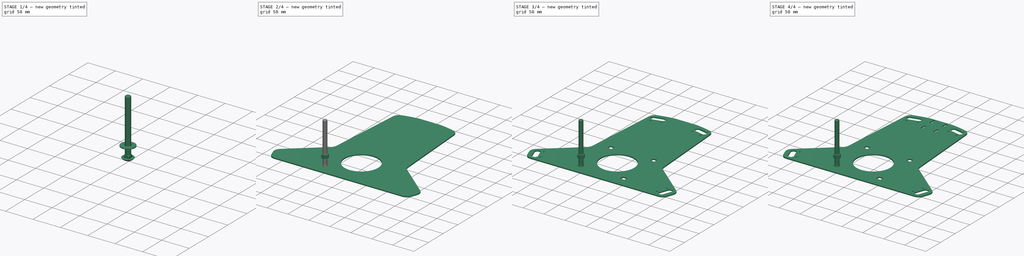
[diagram: build sequence overview — one tinted view per stage of 4, left to right]
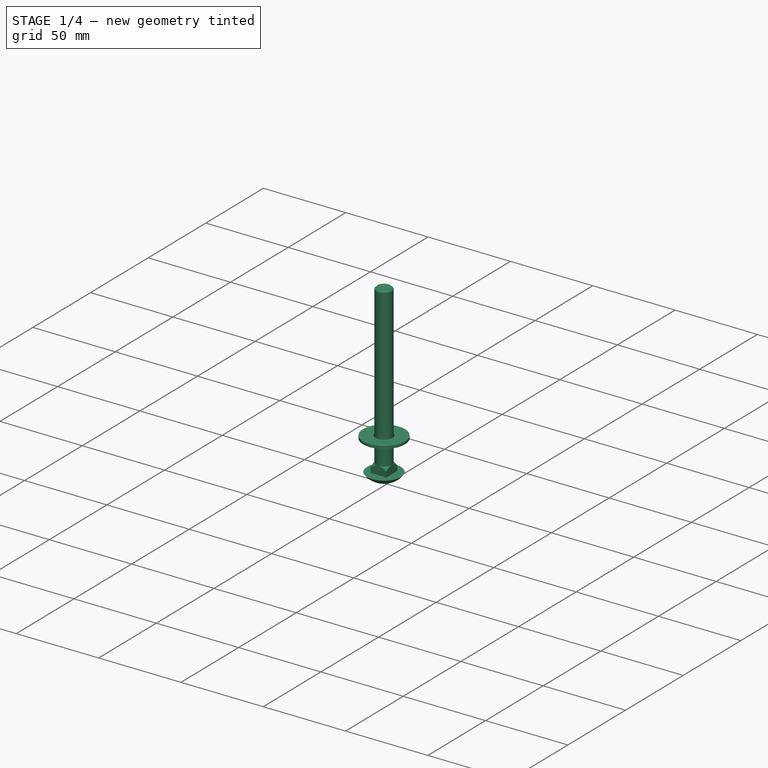
[diagram: stage 1 of 4 — iso view after this stage's code; geometry added in this stage tinted green]
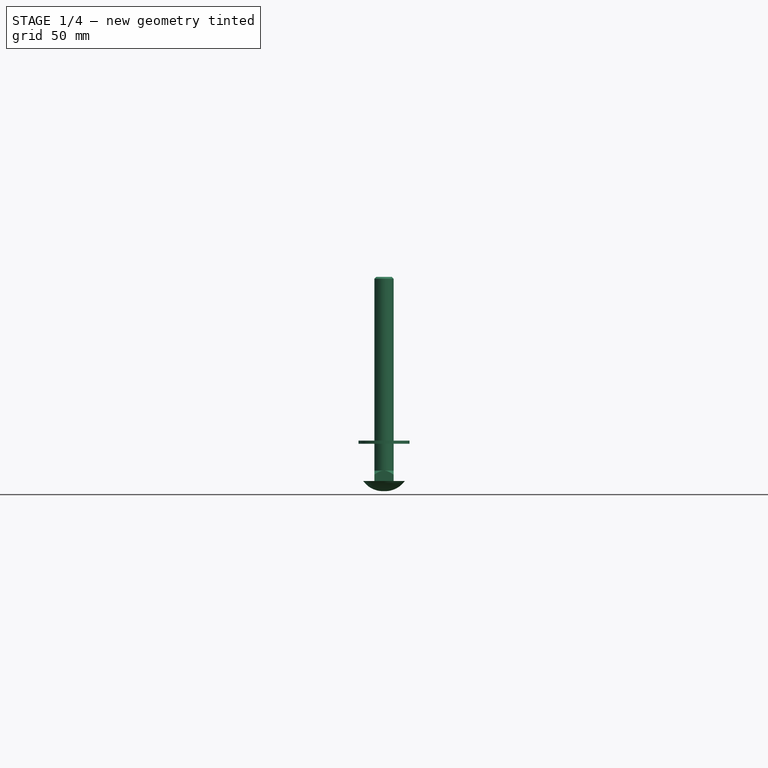
[diagram: stage 1 of 4 — front view after this stage's code; geometry added in this stage tinted green]
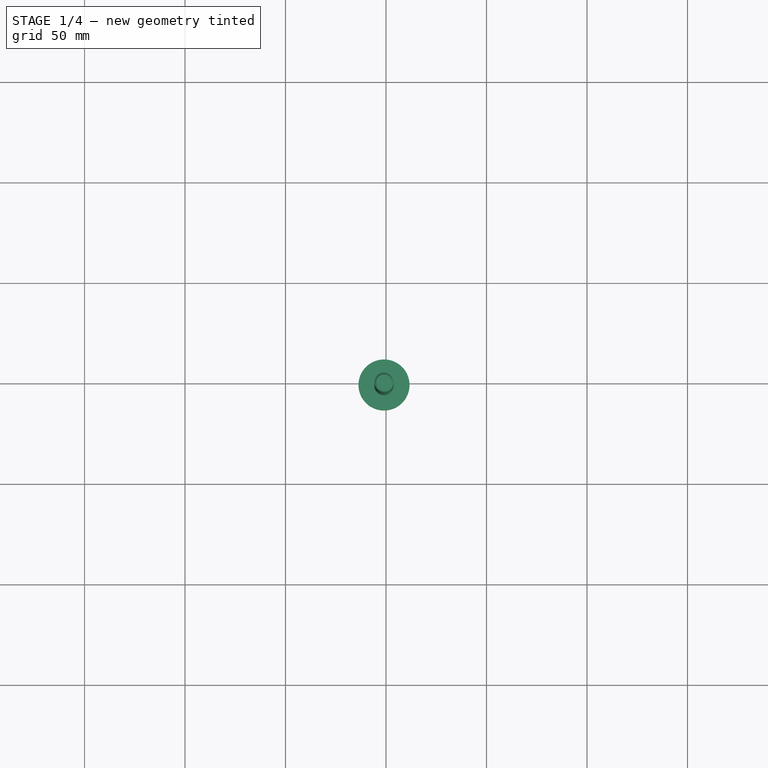
[diagram: stage 1 of 4 — top view after this stage's code; geometry added in this stage tinted green]
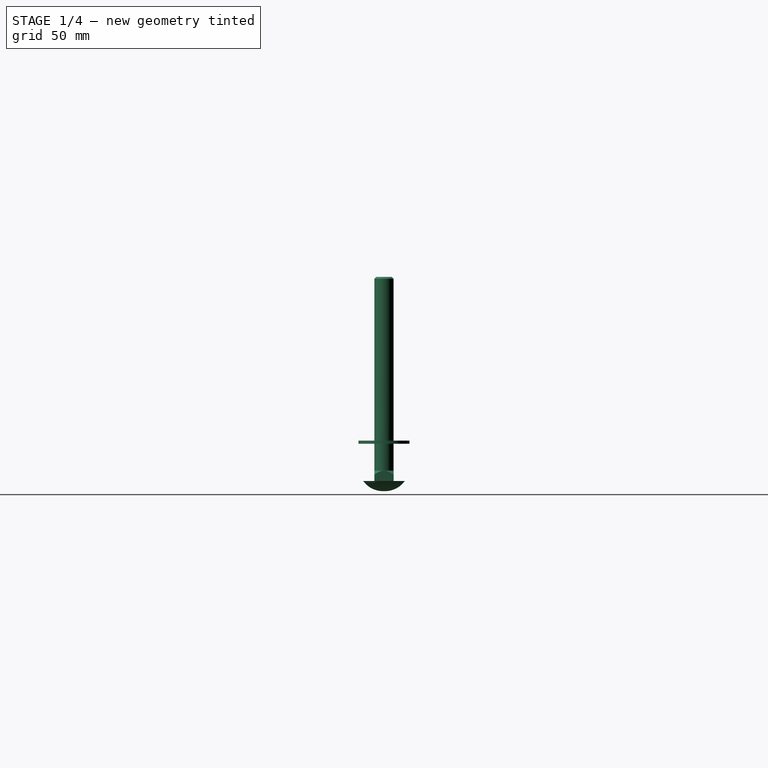
[diagram: stage 1 of 4 — right view after this stage's code; geometry added in this stage tinted green]
FCSTD DOCUMENT  (FreeCAD 0.20R29177 +426 (Git))
Label: DrivePlatform
License: All rights reserved
LicenseURL: http://en.wikipedia.org/wiki/All_rights_reserved
objects: PartDesign::CoordinateSystem×9, Part::FeaturePython×6, Sketcher::SketchObject×5, App::DocumentObjectGroup×4, PartDesign::Pocket×3, PartDesign::Mirrored×2, App::FeaturePython×1, PartDesign::Pad×1, PartDesign::Hole×1, PartDesign::Body×1, TechDraw::DrawSVGTemplate×1, TechDraw::DrawViewPart×1, TechDraw::DrawPage×1, App::Part×1
note: 33 computed .brp shape members not serialized (recipe doc carries the construction recipe); baked Part::Feature solids carry a one-line shape summary decoded from their .brp
EXTERNAL_REF file=Params.FCStd obj=Spreadsheet
EXTERNAL_REF file=TableRollerBase.FCStd obj=Sketch001
EXTERNAL_REF file=PillowBlock.FCStd obj=Sketch001
EXTERNAL_REF file=PillowBlock.FCStd obj=Pad
EXTERNAL_REF file=Stepper17BracketFlat.FCStd obj=Sketch

FEATURE [Part::FeaturePython] Screw002  label="3/8inx4in-Screw"  # Fasteners workbench fastener (typed FeaturePython)
  Placement = pos=(-51.005,-51.005,0) rot=(1,0,0;3.14159rad)
  baseObject = -> Sketch [Edge4]
  diameter = 4
  invert = true
  leftHanded = false
  length = 16
  lengthCustom = 101.6
  matchOuter = false
  offset = 0
  thread = false
  type = 11
FEATURE [Part::FeaturePython] Washer  label="3/8in-Washer"  # Fasteners workbench fastener (typed FeaturePython)
  Placement = pos=(-51.005,-51.005,18.531) rot=(0,0,1;0rad)
  diameter = 13
  invert = true
  matchOuter = false
  offset = 18.531
  type = 1
  expr: offset = <<Params>>#<<Params>>.SheetMetalThickness * 1mm + <<PillowBlock>>#<<Pad>>.Length
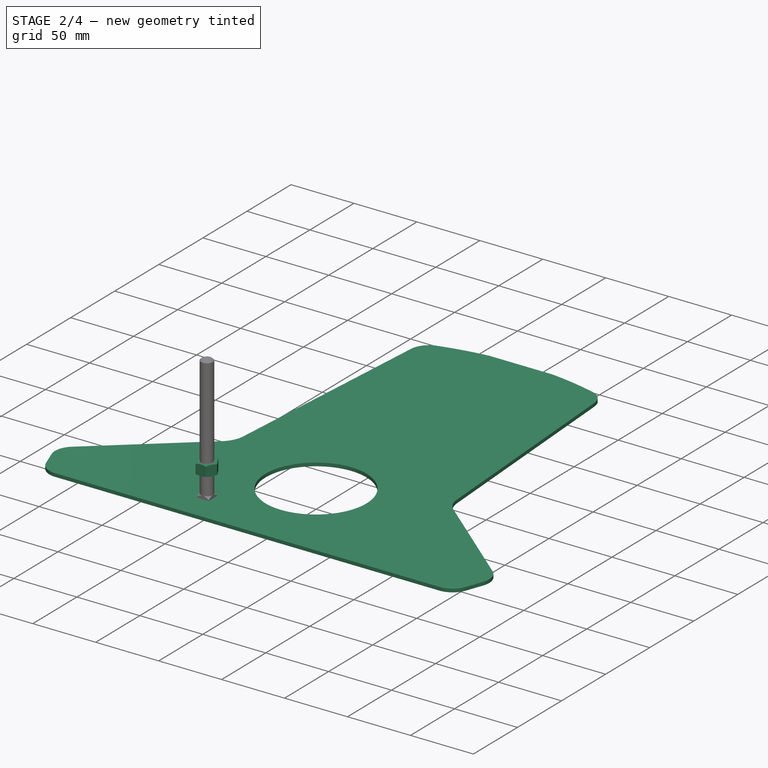
[diagram: stage 2 of 4 — iso view after this stage's code; geometry added in this stage tinted green]
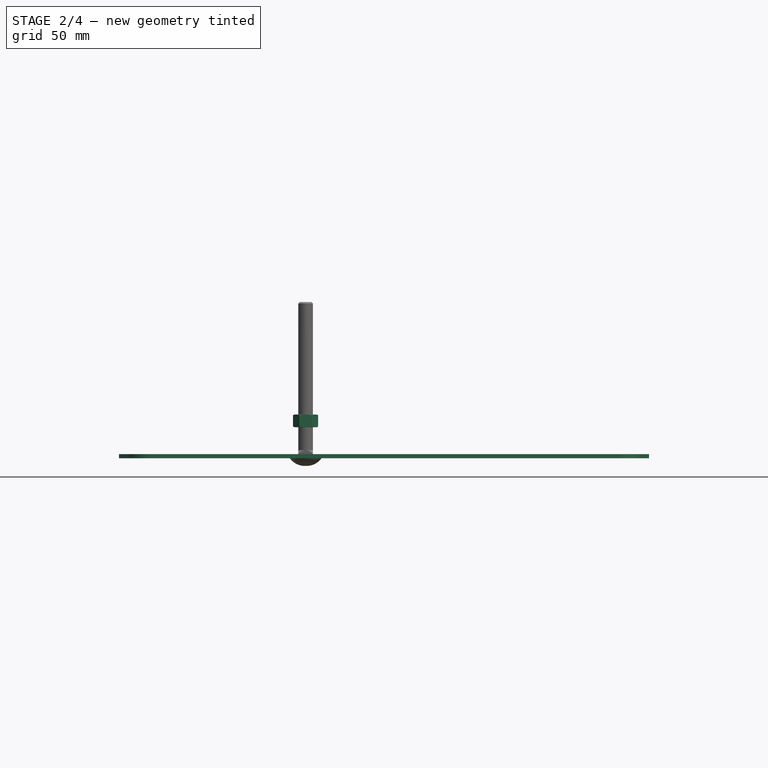
[diagram: stage 2 of 4 — front view after this stage's code; geometry added in this stage tinted green]
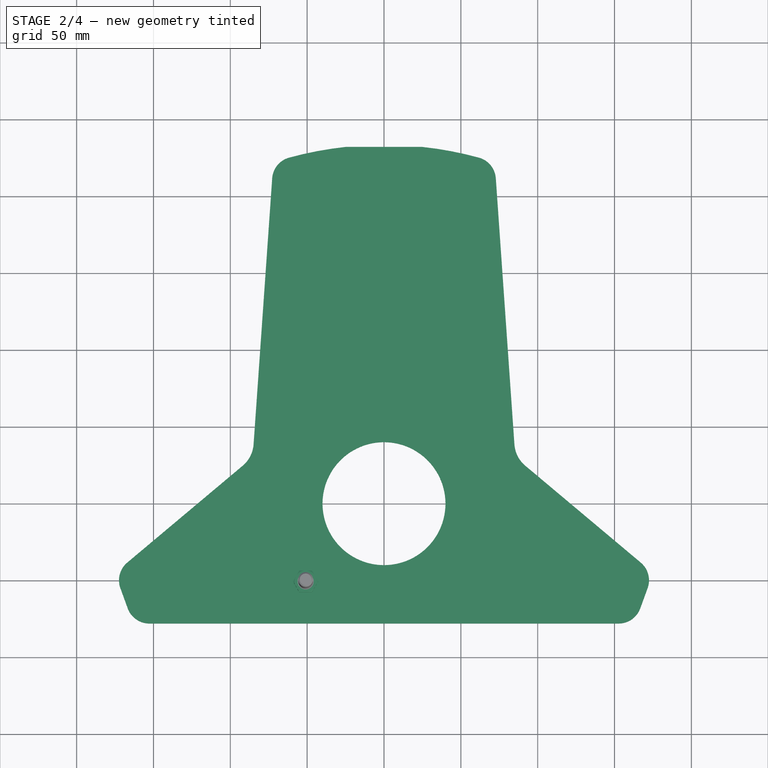
[diagram: stage 2 of 4 — top view after this stage's code; geometry added in this stage tinted green]
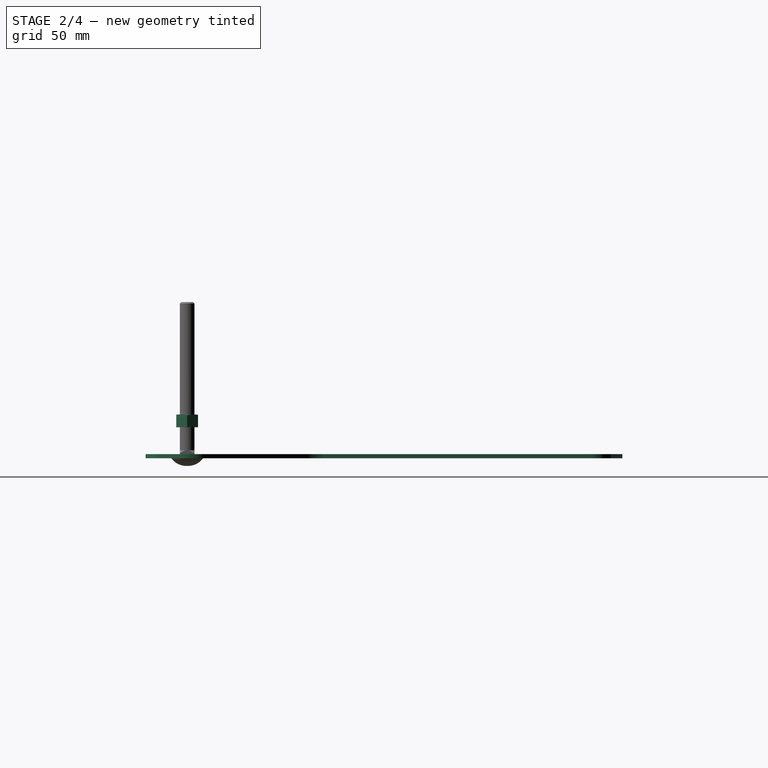
[diagram: stage 2 of 4 — right view after this stage's code; geometry added in this stage tinted green]
FEATURE [App::DocumentObjectGroup] Parts
FEATURE [PartDesign::CoordinateSystem] LCS_Origin
  AttacherType = Attacher::AttachEngine3D
  MapMode = 2
  Support = -> [X_Axis]
FEATURE [App::FeaturePython] Variables  # WARN: FeaturePython — macro-defined, semantics opaque (R4)
  RibOffset = 70
  Type = App::PropertyContainer
FEATURE [App::DocumentObjectGroup] Constraints
FEATURE [App::DocumentObjectGroup] Configurations
FEATURE [Sketcher::SketchObject] Sketch_1
  FullyConstrained = true
  MapMode = 2
  Support = -> [XY_Plane001]
  expr: Constraints[11] = <<Params>>#<<Params>>.CeilingPlateDiameter + 4
  expr: Constraints[19] = <<Params>>#<<Params>>.TableRollerSideRadius + 16
  expr: Constraints[42] = <<Params>>#<<Params>>.TableRollerSideAngle
  expr: Constraints[53] = <<TableRollerBase>>#<<Sketch001>>.Constraints.BaseWidth
  expr: Constraints[66] = <<Params>>#<<Params>>.TableRollerDriveSupportAngle
  sketch-geometry (27):
    g0: LineSegment StartX=152.655 StartY=-78.0112 StartZ=0 EndX=0 EndY=-78.0112 EndZ=0
    g1: ArcOfCircle CenterX=0 CenterY=0 CenterZ=0 NormalX=0 NormalY=0 NormalZ=1 AngleXU=0 Radius=40 StartAngle=4.71239 EndAngle=7.85398
    g2: LineSegment StartX=0 StartY=0 StartZ=0 EndX=-7.3e-15 EndY=-40 EndZ=0
    g3: LineSegment StartX=-7.3e-15 StartY=-40 StartZ=0 EndX=0 EndY=-78.0112 EndZ=0
    g4: Circle CenterX=0 CenterY=0 CenterZ=0 NormalX=0 NormalY=0 NormalZ=1 AngleXU=0 Radius=233.5
    g5: ArcOfCircle CenterX=57.7882 CenterY=210.72 CenterZ=0 NormalX=0 NormalY=0 NormalZ=1 AngleXU=0 Radius=15 StartAngle=0.0698419 EndAngle=1.30313
    g6: ArcOfCircle CenterX=0 CenterY=0 CenterZ=0 NormalX=0 NormalY=0 NormalZ=1 AngleXU=0 Radius=233.5 StartAngle=1.30313 EndAngle=1.46352
    g7: LineSegment StartX=1.22e-14 StartY=40 StartZ=0 EndX=1.22e-14 EndY=232.158 EndZ=0
    g8: LineSegment StartX=0 StartY=0 StartZ=0 EndX=169.145 EndY=-61.5636 EndZ=0
    g9: LineSegment StartX=166.751 StartY=-68.1415 StartZ=0 EndX=171.539 EndY=-54.9858 EndZ=0
    g10: LineSegment StartX=91.9613 StartY=24.6716 StartZ=0 EndX=167.085 EndY=-38.3648 EndZ=0
    g11: ArcOfCircle CenterX=152.655 CenterY=-63.0112 CenterZ=0 NormalX=0 NormalY=0 NormalZ=1 AngleXU=0 Radius=15 StartAngle=4.71239 EndAngle=5.93412
    g12: GeomPoint X=163.158 Y=-78.0112 Z=0
    g13: ArcOfCircle CenterX=157.443 CenterY=-49.8555 CenterZ=0 NormalX=0 NormalY=0 NormalZ=1 AngleXU=0 Radius=15 StartAngle=5.93412 EndAngle=7.15585
    g14: GeomPoint X=175.131 Y=-45.1161 Z=0
    g15: ArcOfCircle CenterX=104.817 CenterY=39.9925 CenterZ=0 NormalX=0 NormalY=0 NormalZ=1 AngleXU=0 Radius=20 StartAngle=3.21143 EndAngle=4.01426
    g16: LineSegment StartX=65.7785 StartY=-23.9414 StartZ=0 EndX=46.0987 EndY=-78.0112 EndZ=0
    g17: LineSegment StartX=84.8659 StartY=38.5968 StartZ=0 EndX=72.7516 EndY=211.766 EndZ=0
    g18: LineSegment StartX=65.7785 StartY=-23.9414 StartZ=0 EndX=85.4583 EndY=30.1284 EndZ=0
    g19: ArcOfCircle CenterX=157.443 CenterY=-49.8555 CenterZ=0 NormalX=0 NormalY=0 NormalZ=1 AngleXU=0 Radius=15 StartAngle=0.872665 EndAngle=1.22173
    g20: ArcOfCircle CenterX=152.655 CenterY=-63.0112 CenterZ=0 NormalX=0 NormalY=0 NormalZ=1 AngleXU=0 Radius=15 StartAngle=4.36332 EndAngle=4.71239
    g21: LineSegment StartX=162.574 StartY=-35.7601 StartZ=0 EndX=147.525 EndY=-77.1066 EndZ=0
    g22: Circle CenterX=44.175 CenterY=213.988 CenterZ=0 NormalX=0 NormalY=0 NormalZ=1 AngleXU=0 Radius=15
    g23: ArcOfCircle CenterX=57.7882 CenterY=210.72 CenterZ=0 NormalX=0 NormalY=0 NormalZ=1 AngleXU=0 Radius=15 StartAngle=6.04757 EndAngle=6.35303
    g24: LineSegment StartX=72.3738 StartY=207.218 StartZ=0 EndX=29.5895 EndY=217.49 EndZ=0
    g25: LineSegment StartX=50.9816 StartY=212.354 StartZ=0 EndX=0 EndY=0 EndZ=0
    g26: LineSegment StartX=1.22e-14 StartY=232.158 StartZ=0 EndX=25 EndY=232.158 EndZ=0
  constraints (72):
    c: Horizontal(g0)
    c: PointOnObject(g0,g-2)
    c: Coincident(g3,g0)
    c: Coincident(g2,g3)
    c: PointOnObject(g1,g-2)
    c: Coincident(g1,g3)
    c: PointOnObject(g1,g-2)
    c: Coincident(g1,g2)
    c: Coincident(g1,g-1)
    c: Diameter(g1) = 80
    c: Coincident(g4,g1)
    c: Diameter(g4) = 467
    c: Coincident(g6,g1)
    c: Tangent(g6,g5) = -1.5708
    c: Equal(g6,g4)
    c: Coincident(g7,g1)
    c: Vertical(g7)
    c: Coincident(g8,g1)
    c: Perpendicular(g8,g9)
    c: Distance(g8) = 180
    c: Symmetric(g14,g12,g8)
    c: PointOnObject(g12,g9)
    c: PointOnObject(g12,g0)
    c: Tangent(g9,g11) = -1.5708
    c: Tangent(g0,g11) = 1.5708
    c: PointOnObject(g14,g9)
    c: PointOnObject(g14,g10)
    c: Tangent(g9,g13) = -1.5708
    c: Tangent(g10,g13) = 1.5708
    c: Equal(g13,g11)
    c: Radius(g13) = 15
    c: Tangent(g15,g10) = -1.5708
    c: PointOnObject(g16,g8)
    c: PointOnObject(g16,g0)
    c: Tangent(g5,g17) = -1.5708
    c: Tangent(g17,g15) = 1.5708
    c: Radius(g15) = 20
    c: Coincident(g18,g16)
    c: PointOnObject(g18,g10)
    c: Parallel(g18,g16)
    c: Perpendicular(g8,g18)
    c: Equal(g18,g16)
    c: Angle(g8,g-1) = 0.349066
    c: Distance(g16,g1) = 70
    c: PointOnObject(g18,g17)
    c: Coincident(g19,g13)
    c: Coincident(g19,g10)
    c: Coincident(g20,g11)
    c: Coincident(g20,g0)
    c: Coincident(g21,g19)
    c: Coincident(g21,g20)
    c: PointOnObject(g13,g21)
    c: PointOnObject(g11,g21)
    c: Distance(g21) = 44
    c: Equal(g5,g13)
    c: Equal(g5,g22)
    c: Coincident(g23,g5)
    c: Coincident(g23,g5)
    c: Coincident(g24,g23)
    c: PointOnObject(g5,g24)
    c: PointOnObject(g22,g24)
    c: PointOnObject(g24,g22)
    c: Coincident(g25,g1)
    c: Perpendicular(g24,g25)
    c: Symmetric(g23,g24,g25)
    c: Equal(g24,g21)
    c: Angle(g25,g7) = 0.235619
    c: DistanceY(g0,g1) = 78.0112  'BottomOffset'
    c: Coincident(g26,g7)
    c: Horizontal(g26)
    c: DistanceX(g26,g26) = 25
    c: Coincident(g26,g6)
FEATURE [PartDesign::Pad] Pad
  Direction = (0,0,1)
  Length = 2.656
  Length2 = 10
  Profile = -> Sketch_1
  ReferenceAxis = -> Sketch_1 [N_Axis]
  Type = 0
  expr: Length = <<Params>>#<<Params>>.SheetMetalThickness
FEATURE [Sketcher::SketchObject] Sketch
  FullyConstrained = true
  MapMode = 5
  Support = -> [XY_Plane001]
  expr: Constraints[11] = <<PillowBlock>>#<<Sketch001>>.Constraints.MountHoleSpacing
  sketch-geometry (25):
    g0: LineSegment StartX=-51.005 StartY=-51.005 StartZ=0 EndX=-51.005 EndY=51.005 EndZ=0
    g1: LineSegment StartX=-51.005 StartY=51.005 StartZ=0 EndX=51.005 EndY=51.005 EndZ=0
    g2: LineSegment StartX=51.005 StartY=51.005 StartZ=0 EndX=51.005 EndY=-51.005 EndZ=0
    g3: LineSegment StartX=51.005 StartY=-51.005 StartZ=0 EndX=-51.005 EndY=-51.005 EndZ=0
    g4: GeomPoint X=0 Y=0 Z=0
    g5: LineSegment StartX=-56.105 StartY=56.105 StartZ=0 EndX=-56.105 EndY=45.905 EndZ=0
    g6: LineSegment StartX=-56.105 StartY=45.905 StartZ=0 EndX=-45.905 EndY=45.905 EndZ=0
    g7: LineSegment StartX=-45.905 StartY=45.905 StartZ=0 EndX=-45.905 EndY=56.105 EndZ=0
    g8: LineSegment StartX=-45.905 StartY=56.105 StartZ=0 EndX=-56.105 EndY=56.105 EndZ=0
    g9: GeomPoint X=-51.005 Y=51.005 Z=0
    g10: LineSegment StartX=45.905 StartY=56.105 StartZ=0 EndX=45.905 EndY=45.905 EndZ=0
    g11: LineSegment StartX=45.905 StartY=45.905 StartZ=0 EndX=56.105 EndY=45.905 EndZ=0
    g12: LineSegment StartX=56.105 StartY=45.905 StartZ=0 EndX=56.105 EndY=56.105 EndZ=0
    g13: LineSegment StartX=56.105 StartY=56.105 StartZ=0 EndX=45.905 EndY=56.105 EndZ=0
    g14: GeomPoint X=51.005 Y=51.005 Z=0
    g15: LineSegment StartX=45.905 StartY=-45.905 StartZ=0 EndX=45.905 EndY=-56.105 EndZ=0
    g16: LineSegment StartX=45.905 StartY=-56.105 StartZ=0 EndX=56.105 EndY=-56.105 EndZ=0
    g17: LineSegment StartX=56.105 StartY=-56.105 StartZ=0 EndX=56.105 EndY=-45.905 EndZ=0
    g18: LineSegment StartX=56.105 StartY=-45.905 StartZ=0 EndX=45.905 EndY=-45.905 EndZ=0
    g19: GeomPoint X=51.005 Y=-51.005 Z=0
    g20: LineSegment StartX=-56.105 StartY=-45.905 StartZ=0 EndX=-56.105 EndY=-56.105 EndZ=0
    g21: LineSegment StartX=-56.105 StartY=-56.105 StartZ=0 EndX=-45.905 EndY=-56.105 EndZ=0
    g22: LineSegment StartX=-45.905 StartY=-56.105 StartZ=0 EndX=-45.905 EndY=-45.905 EndZ=0
    g23: LineSegment StartX=-45.905 StartY=-45.905 StartZ=0 EndX=-56.105 EndY=-45.905 EndZ=0
    g24: GeomPoint X=-51.005 Y=-51.005 Z=0
  constraints (60):
    c: Coincident(g0,g1)
    c: Coincident(g1,g2)
    c: Coincident(g2,g3)
    c: Coincident(g3,g0)
    c: Horizontal(g1)
    c: Horizontal(g3)
    c: Vertical(g0)
    c: Vertical(g2)
    c: Symmetric(g1,g0,g4)
    c: Coincident(g4,g-1)
    c: Equal(g2,g1)
    c: DistanceX(g1,g1) = 102.01
    c: Coincident(g5,g6)
    c: Coincident(g6,g7)
    c: Coincident(g7,g8)
    c: Coincident(g8,g5)
    c: Horizontal(g6)
    c: Horizontal(g8)
    c: Vertical(g5)
    c: Vertical(g7)
    c: Symmetric(g6,g5,g9)
    c: Coincident(g9,g0)
    c: Coincident(g10,g11)
    c: Coincident(g11,g12)
    c: Coincident(g12,g13)
    c: Coincident(g13,g10)
    c: Horizontal(g11)
    c: Horizontal(g13)
    c: Vertical(g10)
    c: Vertical(g12)
    c: Symmetric(g11,g10,g14)
    c: Coincident(g14,g1)
    c: Coincident(g15,g16)
    c: Coincident(g16,g17)
    c: Coincident(g17,g18)
    c: Coincident(g18,g15)
    c: Horizontal(g16)
    c: Horizontal(g18)
    c: Vertical(g15)
    c: Vertical(g17)
    c: Symmetric(g16,g15,g19)
    c: Coincident(g19,g2)
    c: Coincident(g20,g21)
    c: Coincident(g21,g22)
    c: Coincident(g22,g23)
    c: Coincident(g23,g20)
    c: Horizontal(g21)
    c: Horizontal(g23)
    c: Vertical(g20)
    c: Vertical(g22)
    c: Symmetric(g21,g20,g24)
    c: Coincident(g24,g0)
    c: Equal(g22,g23)
    c: Equal(g23,g6)
    c: Equal(g6,g7)
    c: Equal(g7,g10)
    c: Equal(g10,g11)
    c: Equal(g11,g18)
    c: Equal(g18,g15)
    c: DistanceY(g12,g12) = 10.2
FEATURE [PartDesign::Mirrored] Mirrored
  BaseFeature = -> Pad
  MirrorPlane = -> Sketch_1 [V_Axis]
  Originals = -> [Pad]
FEATURE [Part::FeaturePython] Nut  label="3/8in-Nut"  # Fasteners workbench fastener (typed FeaturePython)
  Placement = pos=(-51.005,-51.005,20.1312) rot=(0,0,1;0rad)
  baseObject = -> Washer [Edge1]
  diameter = 3
  invert = false
  leftHanded = false
  matchOuter = false
  offset = 0
  thread = false
  type = 1
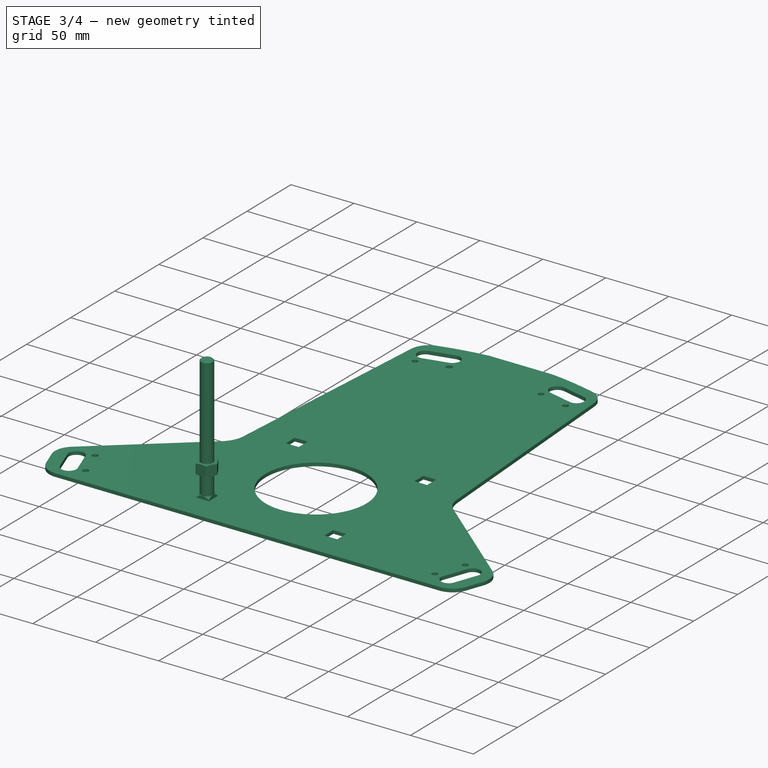
[diagram: stage 3 of 4 — iso view after this stage's code; geometry added in this stage tinted green]
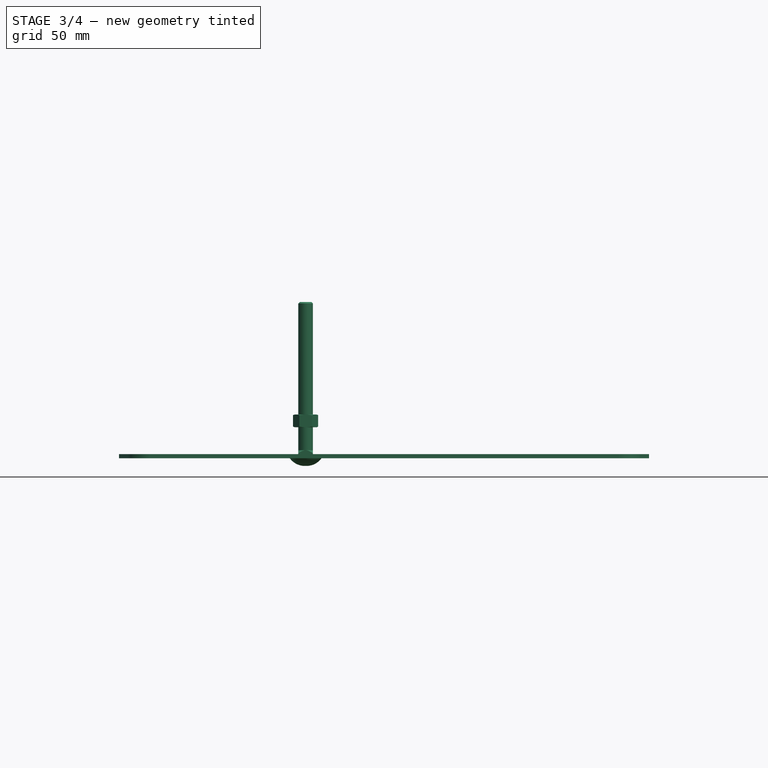
[diagram: stage 3 of 4 — front view after this stage's code; geometry added in this stage tinted green]
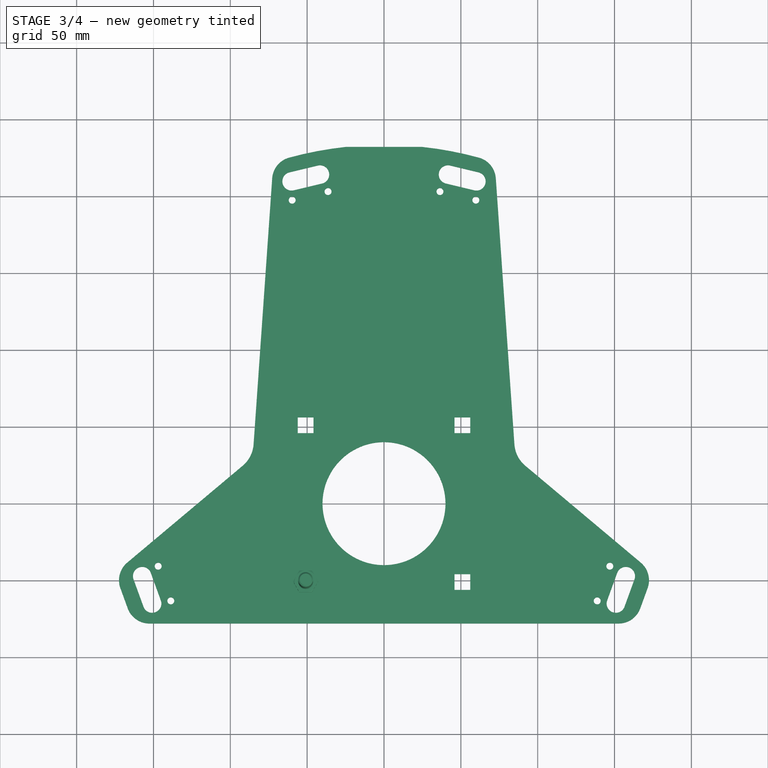
[diagram: stage 3 of 4 — top view after this stage's code; geometry added in this stage tinted green]
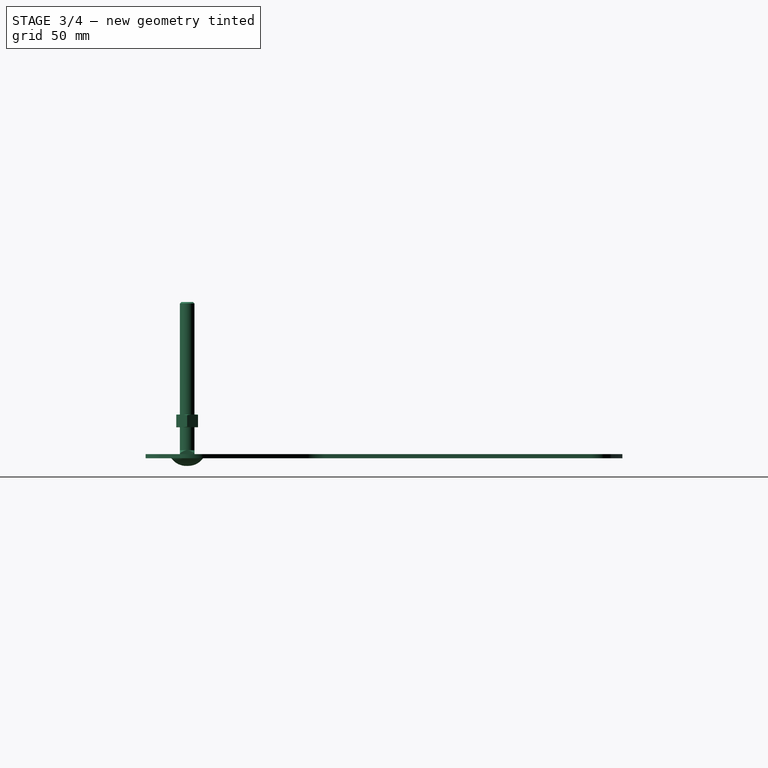
[diagram: stage 3 of 4 — right view after this stage's code; geometry added in this stage tinted green]
FEATURE [PartDesign::Pocket] Pocket  label="PillowBlockMountHoles"
  BaseFeature = -> Mirrored
  Direction = (0,0,-1)
  Length = 5
  Length2 = 5
  Midplane = true
  Profile = -> Sketch
  ReferenceAxis = -> Sketch [N_Axis]
  Type = 1
FEATURE [Sketcher::SketchObject] Sketch001
  FullyConstrained = true
  MapMode = 2
  Support = -> [XY_Plane]
  expr: Constraints[11] = <<Params>>#<<Params>>.TableRollerMountHoleSpacing
  expr: Constraints[23] = <<Params>>#<<Params>>.TableRollerSideRadius
  expr: Constraints[24] = <<Params>>#<<Params>>.TableRollerSideAngle
  expr: Constraints[2] = <<Params>>#<<Params>>.TableRollerMountHoleOffset
  expr: Constraints[4] = <<Params>>#<<Params>>.TableRollerDriveSupportAngle
  expr: Constraints[6] = <<Params>>#<<Params>>.TableRollerDriveSupportRadius
  sketch-geometry (22):
    g0: Circle CenterX=59.7582 CenterY=197.507 CenterZ=0 NormalX=0 NormalY=0 NormalZ=1 AngleXU=0 Radius=1
    g1: Circle CenterX=36.4213 CenterY=203.11 CenterZ=0 NormalX=0 NormalY=0 NormalZ=1 AngleXU=0 Radius=1
    g2: LineSegment StartX=48.0897 StartY=200.308 StartZ=0 EndX=50.8911 EndY=211.977 EndZ=0
    g3: LineSegment StartX=50.8911 StartY=211.977 StartZ=0 EndX=0 EndY=0 EndZ=0
    g4: LineSegment StartX=59.7582 StartY=197.507 StartZ=0 EndX=36.4213 EndY=203.11 EndZ=0
    g5: Circle CenterX=146.938 CenterY=-40.7108 CenterZ=0 NormalX=0 NormalY=0 NormalZ=1 AngleXU=0 Radius=1
    g6: Circle CenterX=138.729 CenterY=-63.2634 CenterZ=0 NormalX=0 NormalY=0 NormalZ=1 AngleXU=0 Radius=1
    g7: LineSegment StartX=142.833 StartY=-51.9871 StartZ=0 EndX=154.11 EndY=-56.0913 EndZ=0
    g8: LineSegment StartX=154.11 StartY=-56.0913 StartZ=0 EndX=0 EndY=0 EndZ=0
    g9: LineSegment StartX=146.938 StartY=-40.7108 StartZ=0 EndX=138.729 EndY=-63.2634 EndZ=0
    g10: Circle CenterX=-36.4213 CenterY=203.11 CenterZ=0 NormalX=0 NormalY=0 NormalZ=1 AngleXU=0 Radius=1
    g11: Circle CenterX=-59.7582 CenterY=197.507 CenterZ=0 NormalX=0 NormalY=0 NormalZ=1 AngleXU=0 Radius=1
    g12: LineSegment StartX=-48.0897 StartY=200.308 StartZ=0 EndX=-50.8911 EndY=211.977 EndZ=0
    g13: LineSegment StartX=-50.8911 StartY=211.977 StartZ=0 EndX=0 EndY=0 EndZ=0
    g14: LineSegment StartX=-36.4213 StartY=203.11 StartZ=0 EndX=-59.7582 EndY=197.507 EndZ=0
    g15: LineSegment StartX=-48.0897 StartY=200.308 StartZ=0 EndX=48.0897 EndY=200.308 EndZ=0
    g16: Circle CenterX=-146.938 CenterY=-40.7108 CenterZ=0 NormalX=0 NormalY=0 NormalZ=1 AngleXU=0 Radius=1
    g17: Circle CenterX=-138.729 CenterY=-63.2634 CenterZ=0 NormalX=0 NormalY=0 NormalZ=1 AngleXU=0 Radius=1
    g18: LineSegment StartX=-142.833 StartY=-51.9871 StartZ=0 EndX=-154.11 EndY=-56.0913 EndZ=0
    g19: LineSegment StartX=-154.11 StartY=-56.0913 StartZ=0 EndX=0 EndY=0 EndZ=0
    g20: LineSegment StartX=-146.938 StartY=-40.7108 StartZ=0 EndX=-138.729 EndY=-63.2634 EndZ=0
    g21: LineSegment StartX=-142.833 StartY=-51.9871 StartZ=0 EndX=142.833 EndY=-51.9871 EndZ=0
  constraints (56):
    c: Equal(g0,g1)
    c: Diameter(g0) = 2
    c: Distance(g2) = 12
    c: Coincident(g3,g-1)
    c: Angle(g3,g-2) = 0.235619
    c: Coincident(g2,g3)
    c: Distance(g3) = 218
    c: Coincident(g4,g0)
    c: Coincident(g4,g1)
    c: Symmetric(g1,g0,g2)
    c: Perpendicular(g2,g4)
    c: Distance(g4) = 24
    c: Equal(g5,g6)
    c: Equal(g0,g5) = 2
    c: Equal(g2,g7) = 12
    c: Parallel(g8,g7)
    c: Coincident(g7,g8)
    c: Coincident(g9,g5)
    c: Coincident(g9,g6)
    c: Symmetric(g6,g5,g7)
    c: Perpendicular(g7,g9)
    c: Equal(g4,g9) = 24
    c: Coincident(g8,g3)
    c: Distance(g8) = 164
    c: Angle(g8,g-1) = 0.349066
    c: PointOnObject(g2,g3)
    c: Equal(g10,g11)
    c: Equal(g0,g10) = 2
    c: Equal(g2,g12) = 12
    c: Coincident(g12,g13)
    c: Equal(g3,g13) = 200
    c: Coincident(g14,g10)
    c: Coincident(g14,g11)
    c: Symmetric(g11,g10,g12)
    c: Perpendicular(g12,g14)
    c: Equal(g4,g14) = 24
    c: PointOnObject(g12,g13)
    c: Coincident(g13,g3)
    c: Coincident(g15,g12)
    c: Coincident(g15,g2)
    c: Horizontal(g15)
    c: Equal(g16,g17)
    c: Equal(g0,g16) = 2
    c: Equal(g2,g18) = 12
    c: Coincident(g18,g19)
    c: Coincident(g20,g16)
    c: Coincident(g20,g17)
    c: Symmetric(g17,g16,g18)
    c: Perpendicular(g18,g20)
    c: Equal(g4,g20) = 24
    c: PointOnObject(g18,g19)
    c: Coincident(g19,g3)
    c: Equal(g19,g8)
    c: Coincident(g21,g18)
    c: Coincident(g21,g7)
    c: Horizontal(g21)
FEATURE [PartDesign::Hole] Hole  label="RollerMountHoles"
  BaseFeature = -> Pocket
  CustomThreadClearance = 0
  Depth = 1133.53
  DepthType = 1
  Diameter = 4.5
  DrillForDepth = false
  DrillPoint = 1
  DrillPointAngle = 118
  HoleCutCountersinkAngle = 90
  HoleCutCustomValues = false
  HoleCutDepth = 0
  HoleCutDiameter = 6.1
  HoleCutType = 0
  ModelThread = false
  Profile = -> Sketch001
  Reversed = true
  Tapered = false
  TaperedAngle = 90
  ThreadClass = 0
  ThreadDepth = 1133.53
  ThreadDepthType = 0
  ThreadDirection = 0
  ThreadFit = 0
  ThreadSize = 11
  ThreadType = 1
  Threaded = false
  UseCustomThreadClearance = false
FEATURE [PartDesign::CoordinateSystem] LCS_RollerRoot1  label="LCS_RollerRootDriveSupport1"
  AttacherType = Attacher::AttachEngine3D
  AttachmentOffset = pos=(0,0,0) rot=(0,0,1;0.235619rad)
  MapMode = 2
  Placement = pos=(0,0,0) rot=(0,0,1;0.235619rad)
  Support = -> [LCS_Origin]
  expr: .AttachmentOffset.Rotation.Angle = <<Params>>#<<Params>>.TableRollerDriveSupportAngle
FEATURE [PartDesign::CoordinateSystem] LCS_RollerRootDriveSupport2
  AttacherType = Attacher::AttachEngine3D
  AttachmentOffset = pos=(0,0,0) rot=(0,0,1;-0.235619rad)
  MapMode = 2
  Placement = pos=(0,0,0) rot=(0,0,1;6.04757rad)
  Support = -> [LCS_Origin]
  expr: .AttachmentOffset.Rotation.Angle = <<Params>>#<<Params>>.TableRollerDriveSupportAngle * -1
FEATURE [PartDesign::CoordinateSystem] LCS_RollerDriveSupport1
  AttacherType = Attacher::AttachEngine3D
  AttachmentOffset = pos=(0,218,0) rot=(0,0,1;0rad)
  MapMode = 2
  Placement = pos=(-50.8911,211.977,0) rot=(0,0,1;0.235619rad)
  Support = -> [LCS_RollerRoot1]
  expr: .AttachmentOffset.Base.y = <<Params>>#<<Params>>.TableRollerDriveSupportRadius
FEATURE [PartDesign::CoordinateSystem] LCS_RollerDriveSupport2
  AttacherType = Attacher::AttachEngine3D
  AttachmentOffset = pos=(0,218,0) rot=(0,0,1;0rad)
  MapMode = 2
  Placement = pos=(50.8911,211.977,0) rot=(0,0,-1;0.235619rad)
  Support = -> [LCS_RollerRootDriveSupport2]
  expr: .AttachmentOffset.Base.y = <<Params>>#<<Params>>.TableRollerDriveSupportRadius
FEATURE [PartDesign::CoordinateSystem] LCS_RollerRootSide1
  AttacherType = Attacher::AttachEngine3D
  AttachmentOffset = pos=(0,0,0) rot=(0,0,1;0.349066rad)
  MapMode = 2
  Placement = pos=(0,0,0) rot=(0,0,1;0.349066rad)
  Support = -> [LCS_Origin]
  expr: .AttachmentOffset.Rotation.Angle = <<Params>>#<<Params>>.TableRollerSideAngle
FEATURE [PartDesign::CoordinateSystem] LCS_RollerRootSide2
  AttacherType = Attacher::AttachEngine3D
  AttachmentOffset = pos=(0,0,0) rot=(0,0,1;-0.349066rad)
  MapMode = 2
  Placement = pos=(0,0,0) rot=(0,0,1;5.93412rad)
  Support = -> [LCS_Origin]
  expr: .AttachmentOffset.Rotation.Angle = <<Params>>#<<Params>>.TableRollerSideAngle * -1
FEATURE [PartDesign::CoordinateSystem] LCS_RollerSide1
  AttacherType = Attacher::AttachEngine3D
  AttachmentOffset = pos=(-164,0,0) rot=(0,0,1;0rad)
  MapMode = 2
  Placement = pos=(-154.11,-56.0913,0) rot=(0,0,1;0.349066rad)
  Support = -> [LCS_RollerRootSide1]
  expr: .AttachmentOffset.Base.x = <<Params>>#<<Params>>.TableRollerSideRadius * -1
FEATURE [PartDesign::CoordinateSystem] LCS_RollerSide2
  AttacherType = Attacher::AttachEngine3D
  AttachmentOffset = pos=(164,0,0) rot=(0,0,1;0rad)
  MapMode = 2
  Placement = pos=(154.11,-56.0913,0) rot=(0,0,-1;0.349066rad)
  Support = -> [LCS_RollerRootSide2]
  expr: .AttachmentOffset.Base.x = <<Params>>#<<Params>>.TableRollerSideRadius
FEATURE [Sketcher::SketchObject] Sketch002
  FullyConstrained = true
  MapMode = 2
  Support = -> [XY_Plane001]
  expr: Constraints[11] = <<Params>>#<<Params>>.TableRollerMountHoleSpacing
  expr: Constraints[23] = <<Params>>#<<Params>>.TableRollerSideRadius
  expr: Constraints[24] = <<Params>>#<<Params>>.TableRollerSideAngle
  expr: Constraints[2] = <<Params>>#<<Params>>.TableRollerMountHoleOffset
  expr: Constraints[4] = <<Params>>#<<Params>>.TableRollerDriveSupportAngle
  expr: Constraints[6] = <<Params>>#<<Params>>.TableRollerDriveSupportRadius
  sketch-geometry (38):
    g0: Circle CenterX=59.7582 CenterY=197.507 CenterZ=0 NormalX=0 NormalY=0 NormalZ=1 AngleXU=0 Radius=1
    g1: Circle CenterX=36.4213 CenterY=203.11 CenterZ=0 NormalX=0 NormalY=0 NormalZ=1 AngleXU=0 Radius=1
    g2: LineSegment StartX=48.0897 StartY=200.308 StartZ=0 EndX=50.8911 EndY=211.977 EndZ=0
    g3: LineSegment StartX=50.8911 StartY=211.977 StartZ=0 EndX=0 EndY=0 EndZ=0
    g4: LineSegment StartX=59.7582 StartY=197.507 StartZ=0 EndX=36.4213 EndY=203.11 EndZ=0
    g5: Circle CenterX=146.938 CenterY=-40.7108 CenterZ=0 NormalX=0 NormalY=0 NormalZ=1 AngleXU=0 Radius=1
    g6: Circle CenterX=138.729 CenterY=-63.2634 CenterZ=0 NormalX=0 NormalY=0 NormalZ=1 AngleXU=0 Radius=1
    g7: LineSegment StartX=142.833 StartY=-51.9871 StartZ=0 EndX=154.11 EndY=-56.0913 EndZ=0
    g8: LineSegment StartX=154.11 StartY=-56.0913 StartZ=0 EndX=0 EndY=0 EndZ=0
    g9: LineSegment StartX=146.938 StartY=-40.7108 StartZ=0 EndX=138.729 EndY=-63.2634 EndZ=0
    g10: Circle CenterX=-36.4213 CenterY=203.11 CenterZ=0 NormalX=0 NormalY=0 NormalZ=1 AngleXU=0 Radius=1
    g11: Circle CenterX=-59.7582 CenterY=197.507 CenterZ=0 NormalX=0 NormalY=0 NormalZ=1 AngleXU=0 Radius=1
    g12: LineSegment StartX=-48.0897 StartY=200.308 StartZ=0 EndX=-50.8911 EndY=211.977 EndZ=0
    g13: LineSegment StartX=-50.8911 StartY=211.977 StartZ=0 EndX=0 EndY=0 EndZ=0
    g14: LineSegment StartX=-36.4213 StartY=203.11 StartZ=0 EndX=-59.7582 EndY=197.507 EndZ=0
    g15: LineSegment StartX=-48.0897 StartY=200.308 StartZ=0 EndX=48.0897 EndY=200.308 EndZ=0
    g16: Circle CenterX=-146.938 CenterY=-40.7108 CenterZ=0 NormalX=0 NormalY=0 NormalZ=1 AngleXU=0 Radius=1
    g17: Circle CenterX=-138.729 CenterY=-63.2634 CenterZ=0 NormalX=0 NormalY=0 NormalZ=1 AngleXU=0 Radius=1
    g18: LineSegment StartX=-142.833 StartY=-51.9871 StartZ=0 EndX=-154.11 EndY=-56.0913 EndZ=0
    g19: LineSegment StartX=-154.11 StartY=-56.0913 StartZ=0 EndX=0 EndY=0 EndZ=0
    g20: LineSegment StartX=-146.938 StartY=-40.7108 StartZ=0 EndX=-138.729 EndY=-63.2634 EndZ=0
    g21: LineSegment StartX=-142.833 StartY=-51.9871 StartZ=0 EndX=142.833 EndY=-51.9871 EndZ=0
    g22: ArcOfCircle CenterX=41.6536 CenterY=214.194 CenterZ=0 NormalX=0 NormalY=0 NormalZ=1 AngleXU=0 Radius=6 StartAngle=1.33518 EndAngle=4.47677
    g23: ArcOfCircle CenterX=60.1286 CenterY=209.759 CenterZ=0 NormalX=0 NormalY=0 NormalZ=1 AngleXU=0 Radius=6 StartAngle=4.47677 EndAngle=7.61836
    g24: LineSegment StartX=40.2529 StartY=208.36 StartZ=0 EndX=58.7279 EndY=203.925 EndZ=0
    g25: LineSegment StartX=61.5293 StartY=215.593 StartZ=0 EndX=43.0542 EndY=220.029 EndZ=0
    g26: ArcOfCircle CenterX=-41.6536 CenterY=214.194 CenterZ=0 NormalX=0 NormalY=0 NormalZ=1 AngleXU=0 Radius=6 StartAngle=4.94801 EndAngle=8.0896
    g27: LineSegment StartX=-43.0542 StartY=220.029 StartZ=0 EndX=-61.5293 EndY=215.593 EndZ=0
    g28: ArcOfCircle CenterX=-60.1286 CenterY=209.759 CenterZ=0 NormalX=0 NormalY=0 NormalZ=1 AngleXU=0 Radius=6 StartAngle=1.80642 EndAngle=4.94801
    g29: LineSegment StartX=-58.7279 StartY=203.925 StartZ=0 EndX=-40.2529 EndY=208.36 EndZ=0
    g30: ArcOfCircle CenterX=-150.86 CenterY=-65.0184 CenterZ=0 NormalX=0 NormalY=0 NormalZ=1 AngleXU=0 Radius=6 StartAngle=3.49066 EndAngle=6.63225
    g31: LineSegment StartX=-162.997 StartY=-49.2163 StartZ=0 EndX=-156.499 EndY=-67.0705 EndZ=0
    g32: LineSegment StartX=-145.222 StartY=-62.9663 StartZ=0 EndX=-151.721 EndY=-45.1121 EndZ=0
    g33: ArcOfCircle CenterX=-157.359 CenterY=-47.1642 CenterZ=0 NormalX=0 NormalY=0 NormalZ=1 AngleXU=0 Radius=6 StartAngle=0.349066 EndAngle=3.49066
    g34: ArcOfCircle CenterX=157.359 CenterY=-47.1642 CenterZ=0 NormalX=0 NormalY=0 NormalZ=1 AngleXU=0 Radius=6 StartAngle=5.93412 EndAngle=9.07571
    g35: LineSegment StartX=151.721 StartY=-45.1121 StartZ=0 EndX=145.222 EndY=-62.9663 EndZ=0
    g36: LineSegment StartX=156.499 StartY=-67.0705 StartZ=0 EndX=162.997 EndY=-49.2163 EndZ=0
    g37: ArcOfCircle CenterX=150.86 CenterY=-65.0184 CenterZ=0 NormalX=0 NormalY=0 NormalZ=1 AngleXU=0 Radius=6 StartAngle=2.79253 EndAngle=5.93412
  constraints (92):
    c: Equal(g0,g1)
    c: Diameter(g0) = 2
    c: Distance(g2) = 12
    c: Coincident(g3,g-1)
    c: Angle(g3,g-2) = 0.235619
    c: Coincident(g2,g3)
    c: Distance(g3) = 218
    c: Coincident(g4,g0)
    c: Coincident(g4,g1)
    c: Symmetric(g1,g0,g2)
    c: Perpendicular(g2,g4)
    c: Distance(g4) = 24
    c: Equal(g5,g6)
    c: Equal(g0,g5) = 2
    c: Equal(g2,g7) = 12
    c: Parallel(g8,g7)
    c: Coincident(g7,g8)
    c: Coincident(g9,g5)
    c: Coincident(g9,g6)
    c: Symmetric(g6,g5,g7)
    c: Perpendicular(g7,g9)
    c: Equal(g4,g9) = 24
    c: Coincident(g8,g3)
    c: Distance(g8) = 164
    c: Angle(g8,g-1) = 0.349066
    c: PointOnObject(g2,g3)
    c: Equal(g10,g11)
    c: Equal(g0,g10) = 2
    c: Equal(g2,g12) = 12
    c: Coincident(g12,g13)
    c: Equal(g3,g13) = 200
    c: Coincident(g14,g10)
    c: Coincident(g14,g11)
    c: Symmetric(g11,g10,g12)
    c: Perpendicular(g12,g14)
    c: Equal(g4,g14) = 24
    c: PointOnObject(g12,g13)
    c: Coincident(g13,g3)
    c: Coincident(g15,g12)
    c: Coincident(g15,g2)
    c: Horizontal(g15)
    c: Equal(g16,g17)
    c: Equal(g0,g16) = 2
    c: Equal(g2,g18) = 12
    c: Coincident(g18,g19)
    c: Coincident(g20,g16)
    c: Coincident(g20,g17)
    c: Symmetric(g17,g16,g18)
    c: Perpendicular(g18,g20)
    c: Equal(g4,g20) = 24
    c: PointOnObject(g18,g19)
    c: Coincident(g19,g3)
    c: Equal(g19,g8)
    c: Coincident(g21,g18)
    c: Coincident(g21,g7)
    c: Horizontal(g21)
    c: Tangent(g22,g24) = -1.5708
    c: Tangent(g24,g23) = -1.5708
    c: Tangent(g23,g25) = -1.5708
    c: Tangent(g25,g22) = -1.5708
    c: Equal(g22,g23)
    c: Symmetric(g23,g22,g2)
    c: Parallel(g24,g4)
    c: Diameter(g23) = 12
    c: Distance(g25) = 19
    c: Tangent(g28,g29) = -1.5708
    c: Tangent(g29,g26) = -1.5708
    c: Tangent(g26,g27) = -1.5708
    c: Tangent(g27,g28) = -1.5708
    c: Equal(g28,g26)
    c: Equal(g23,g26) = 12
    c: Equal(g25,g27) = 15
    c: Tangent(g33,g31) = -1.5708
    c: Tangent(g31,g30) = -1.5708
    c: Tangent(g30,g32) = -1.5708
    c: Tangent(g32,g33) = -1.5708
    c: Equal(g33,g30)
    c: Equal(g23,g30) = 12
    c: Equal(g25,g32) = 15
    c: Tangent(g37,g36) = -1.5708
    c: Tangent(g36,g34) = -1.5708
    c: Tangent(g34,g35) = -1.5708
    c: Tangent(g35,g37) = -1.5708
    c: Equal(g37,g34)
    c: Equal(g23,g34) = 12
    c: Equal(g25,g35) = 15
    c: Symmetric(g26,g28,g12)
    c: Parallel(g29,g14)
    c: Symmetric(g34,g37,g7)
    c: Parallel(g35,g9)
    c: Symmetric(g33,g30,g18)
    c: Parallel(g32,g20)
FEATURE [PartDesign::Pocket] Pocket001  label="RollerSlots"
  BaseFeature = -> Hole
  Direction = (0,0,-1)
  Length = 5
  Length2 = 5
  Profile = -> Sketch002
  ReferenceAxis = -> Sketch002 [N_Axis]
  Reversed = true
  Type = 1
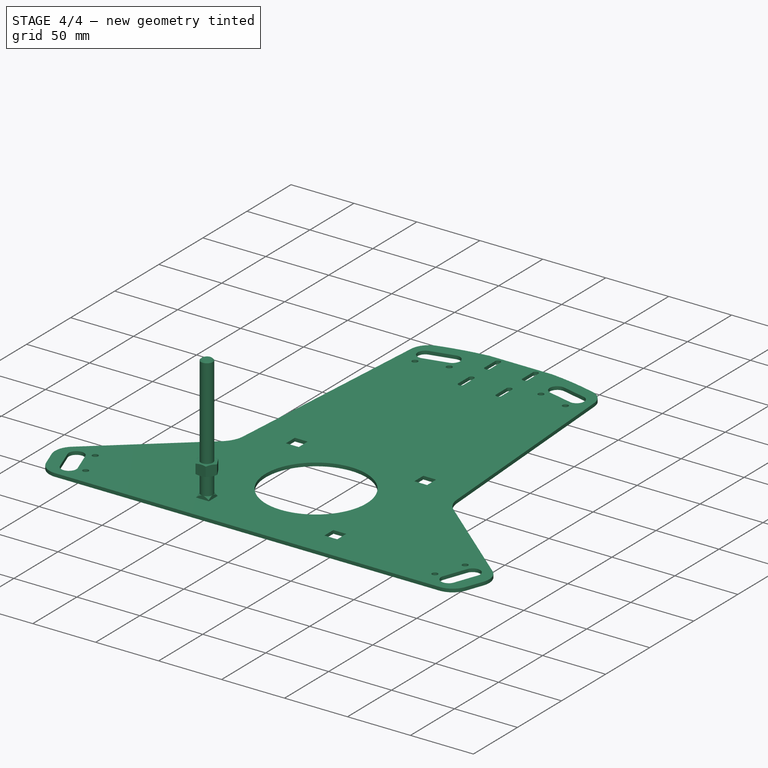
[diagram: stage 4 of 4 — iso view after this stage's code; geometry added in this stage tinted green]
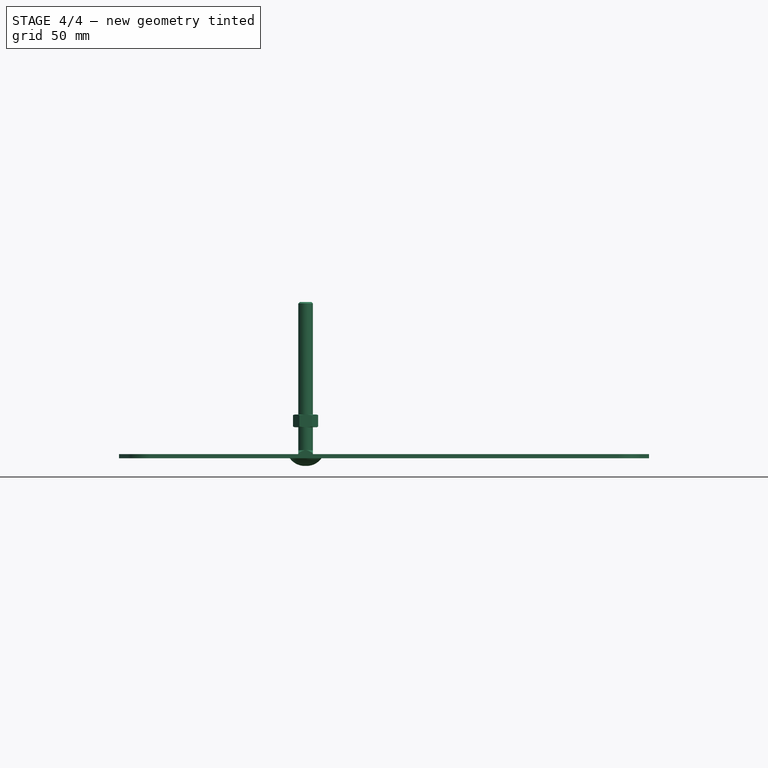
[diagram: stage 4 of 4 — front view after this stage's code; geometry added in this stage tinted green]
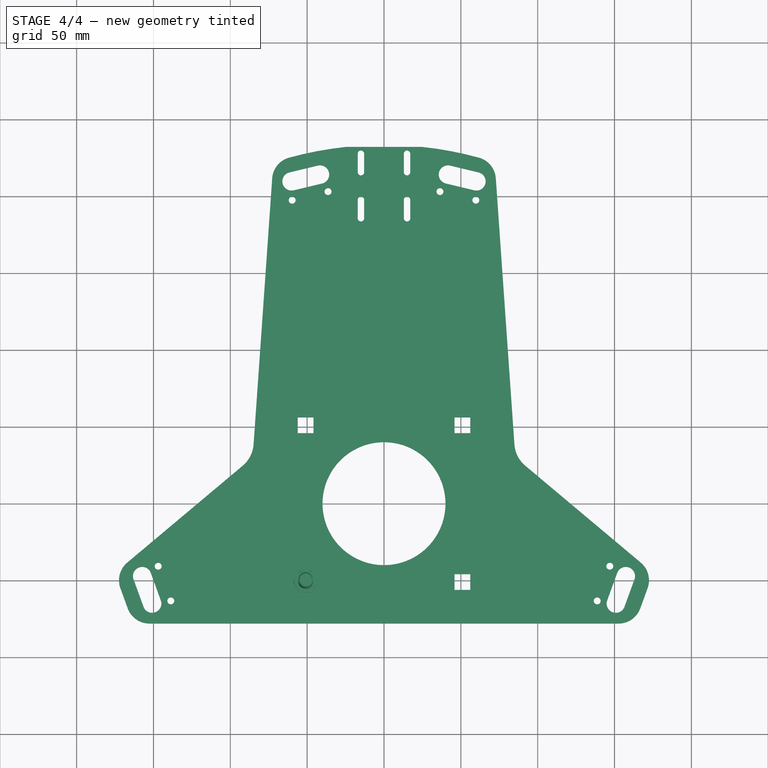
[diagram: stage 4 of 4 — top view after this stage's code; geometry added in this stage tinted green]
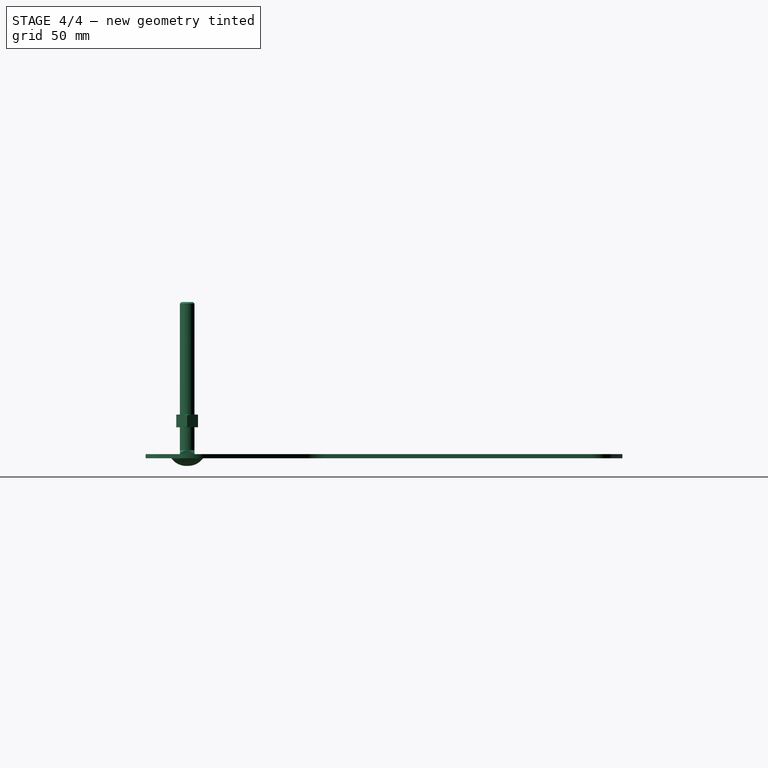
[diagram: stage 4 of 4 — right view after this stage's code; geometry added in this stage tinted green]
FEATURE [Sketcher::SketchObject] Sketch003
  FullyConstrained = true
  MapMode = 5
  Support = -> [XY_Plane001]
  expr: Constraints[22] = <<Stepper17BracketFlat>>#<<Sketch>>.Constraints.SlotSpacing / 2
  expr: Constraints[26] = 1mm * (<<Params>>#<<Params>>.CeilingPlateDiameter / 2 + <<Params>>#<<Params>>.RotationDriveOffset) - <<Stepper17BracketFlat>>#<<Sketch>>.Constraints.MountOffset
  sketch-geometry (12):
    g0: ArcOfCircle CenterX=15 CenterY=227.75 CenterZ=0 NormalX=0 NormalY=0 NormalZ=1 AngleXU=0 Radius=2.1 StartAngle=-2.585e-13 EndAngle=3.14159
    g1: ArcOfCircle CenterX=15 CenterY=215.75 CenterZ=0 NormalX=0 NormalY=0 NormalZ=1 AngleXU=0 Radius=2.1 StartAngle=3.14159 EndAngle=6.28319
    g2: LineSegment StartX=12.9 StartY=227.75 StartZ=0 EndX=12.9 EndY=215.75 EndZ=0
    g3: LineSegment StartX=17.1 StartY=215.75 StartZ=0 EndX=17.1 EndY=227.75 EndZ=0
    g4: ArcOfCircle CenterX=15 CenterY=197.75 CenterZ=0 NormalX=0 NormalY=0 NormalZ=1 AngleXU=0 Radius=2.1 StartAngle=1.1e-15 EndAngle=3.14159
    g5: ArcOfCircle CenterX=15 CenterY=185.75 CenterZ=0 NormalX=0 NormalY=0 NormalZ=1 AngleXU=0 Radius=2.1 StartAngle=3.14159 EndAngle=6.28319
    g6: LineSegment StartX=12.9 StartY=197.75 StartZ=0 EndX=12.9 EndY=185.75 EndZ=0
    g7: LineSegment StartX=17.1 StartY=185.75 StartZ=0 EndX=17.1 EndY=197.75 EndZ=0
    g8: GeomPoint X=15 Y=221.75 Z=0
    g9: GeomPoint X=15 Y=191.75 Z=0
    g10: LineSegment StartX=15 StartY=221.75 StartZ=0 EndX=15 EndY=191.75 EndZ=0
    g11: LineSegment StartX=15 StartY=206.75 StartZ=0 EndX=0 EndY=206.75 EndZ=0
  constraints (27):
    c: Tangent(g0,g2) = -1.5708
    c: Tangent(g2,g1) = -1.5708
    c: Tangent(g1,g3) = -1.5708
    c: Tangent(g3,g0) = -1.5708
    c: Equal(g0,g1)
    c: Vertical(g2)
    c: Tangent(g4,g6) = -1.5708
    c: Tangent(g6,g5) = -1.5708
    c: Tangent(g5,g7) = -1.5708
    c: Tangent(g7,g4) = -1.5708
    c: Equal(g4,g5)
    c: Vertical(g6)
    c: Equal(g4,g0)
    c: Equal(g2,g6)
    c: Diameter(g0) = 4.2
    c: PointOnObject(g1,g6)
    c: DistanceY(g1,g0) = 12
    c: Symmetric(g4,g5,g9)
    c: Symmetric(g0,g1,g8)
    c: Coincident(g10,g8)
    c: Coincident(g10,g9)
    c: DistanceY(g10,g10) = 30
    c: DistanceX(g-1,g0) = 15
    c: PointOnObject(g11,g-2)
    c: Horizontal(g11)
    c: Symmetric(g8,g9,g11)
    c: DistanceY(g-1,g11) = 206.75
FEATURE [PartDesign::Pocket] Pocket002  label="RotationDriverMountSlots"
  BaseFeature = -> Pocket001
  Direction = (0,0,-1)
  Length = 5
  Length2 = 5
  Midplane = true
  Profile = -> Sketch003
  ReferenceAxis = -> Sketch003 [N_Axis]
  Type = 1
FEATURE [PartDesign::Mirrored] Mirrored001  label="RotationDriverMountSlotMirror"
  BaseFeature = -> Pocket002
  MirrorPlane = -> Sketch003 [V_Axis]
  Originals = -> [Pocket002]
FEATURE [PartDesign::Body] Body
  Group = -> [Sketch_1,Pad,Mirrored,Sketch,Pocket,Sketch001,Hole,Sketch002,Pocket001,Sketch003,Pocket002,Mirrored001]
  Origin = -> Origin001
  Tip = -> Mirrored001
FEATURE [TechDraw::DrawSVGTemplate] Template
  Height = 841
  Orientation = 1
  Width = 1189
FEATURE [TechDraw::DrawViewPart] View
  CoarseView = false
  Direction = (0,0,-1)
  Focus = 100
  HardHidden = false
  IsoCount = 0
  IsoHidden = false
  IsoVisible = false
  LockPosition = false
  Perspective = false
  Rotation = 0
  ScaleType = 0
  SeamHidden = false
  SeamVisible = true
  SmoothHidden = false
  SmoothVisible = true
  Source = -> [Mirrored001]
  X = 173.832
  XDirection = (-1,0,0)
  Y = 156.23
FEATURE [TechDraw::DrawPage] Page
  KeepUpdated = true
  NextBalloonIndex = 1
  ProjectionType = 0
  Template = -> Template
  Views = -> [View]
FEATURE [Part::FeaturePython] Circular_Nut  label="Circular_3/8in-Nut"  # Draft array (typed FeaturePython)
  AngleStep = 90
  ArrayType = Circular Array
  Axis = -> LCS_Origin [Z]
  Count = 4
  Index = 1
  PlacementList = 4 placements: [(-51.005,-51.005,20.1312),(51.005,-51.005,20.1312),(51.005,51.005,20.1312),(-51.005,51.005,20.1312)]
  Placer = pos=(0,0,0) rot=(0,0,1;4.71239rad)
  ScaleList = (4) [(1,1,1),(1,1,1),(1,1,1),(1,1,1)]
  Scaler = 1
  ShowElement = false
  SourceObject = -> Nut
  expr: .Placer.Rotation.Angle = AngleStep * Index
  expr: AngleStep = 360 / Count
FEATURE [Part::FeaturePython] Circular_Screw002  label="Circular_3/8inx4in-Screw"  # Draft array (typed FeaturePython)
  AngleStep = 90
  ArrayType = Circular Array
  Axis = -> LCS_Origin [Z]
  Count = 4
  Index = 1
  PlacementList = 4 placements: [(-51.005,-51.005,0),(51.005,-51.005,0),(51.005,51.005,0),(-51.005,51.005,0)]
  Placer = pos=(0,0,0) rot=(0,0,1;4.71239rad)
  ScaleList = (4) [(1,1,1),(1,1,1),(1,1,1),(1,1,1)]
  Scaler = 1
  ShowElement = false
  SourceObject = -> Screw002
  expr: .Placer.Rotation.Angle = AngleStep * Index
  expr: AngleStep = 360 / Count
FEATURE [Part::FeaturePython] Circular_Washer  label="Circular_3/8in-Washer"  # Draft array (typed FeaturePython)
  AngleStep = 90
  ArrayType = Circular Array
  Axis = -> LCS_Origin [Z]
  Count = 4
  Index = 1
  PlacementList = 4 placements: [(-51.005,-51.005,18.531),(51.005,-51.005,18.531),(51.005,51.005,18.531),(-51.005,51.005,18.531)]
  Placer = pos=(0,0,0) rot=(0,0,1;4.71239rad)
  ScaleList = (4) [(1,1,1),(1,1,1),(1,1,1),(1,1,1)]
  Scaler = 1
  ShowElement = false
  SourceObject = -> Washer
  expr: .Placer.Rotation.Angle = AngleStep * Index
  expr: AngleStep = 360 / Count
FEATURE [App::DocumentObjectGroup] Fasteners
  Group = -> [Screw002,Washer,Nut,Circular_Nut,Circular_Screw002,Circular_Washer]
FEATURE [App::Part] Assembly
  AssemblyType = Part::Link
  Group = -> [Variables,Constraints,Configurations,Body,Fasteners,Circular_Nut,Circular_Screw002,LCS_RollerRootDriveSupport2,LCS_RollerDriveSupport2,LCS_RollerRootSide2,LCS_Origin,LCS_RollerRoot1,LCS_RollerSide1,LCS_RollerDriveSupport1,LCS_RollerSide2,LCS_RollerRootSide1,Nut,Screw002,Washer,Circular_Washer]
  Origin = -> Origin
  Type = Assembly
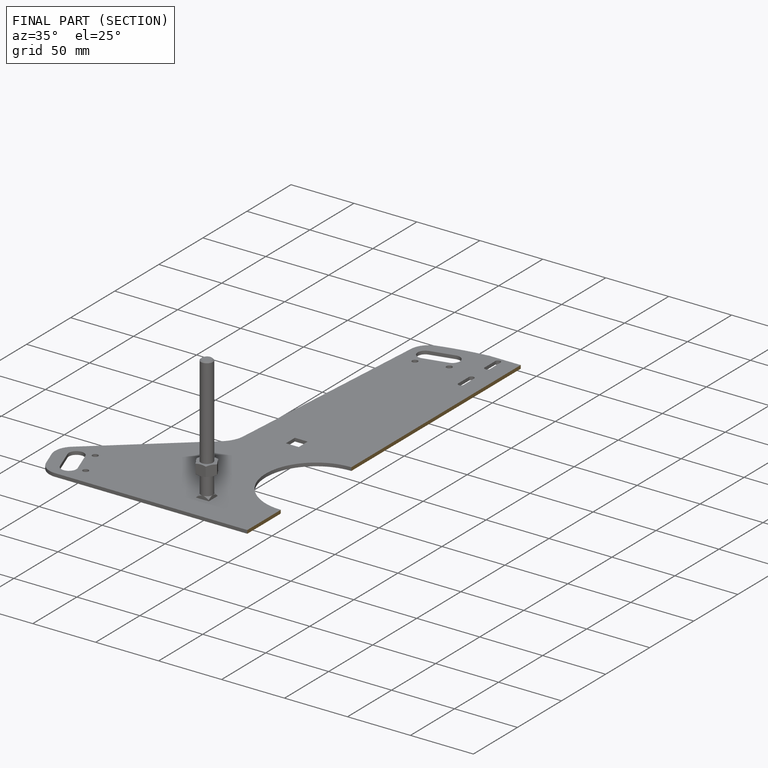
[diagram: finished part — half-section view (interior)]
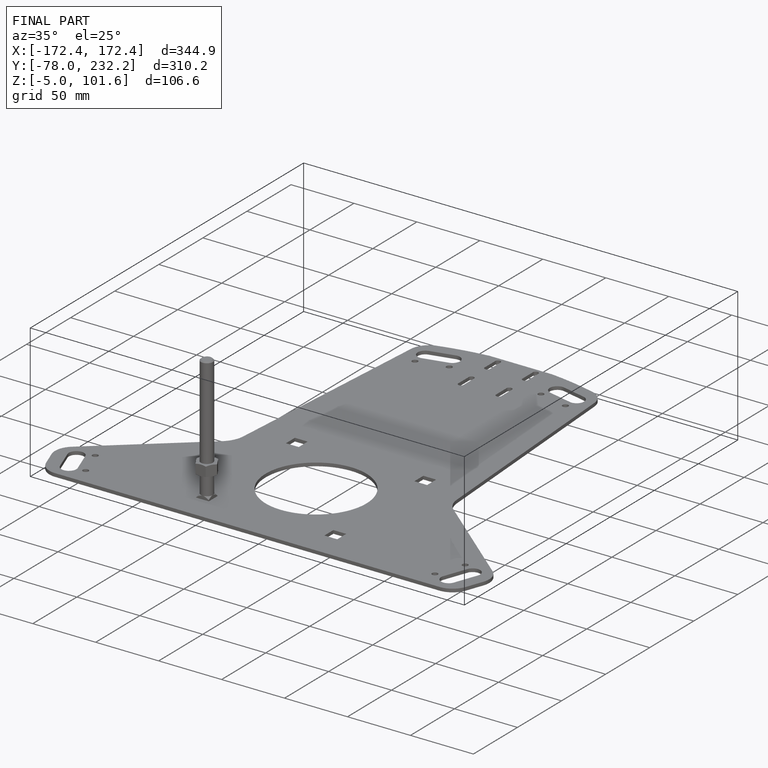
[diagram: finished part — iso view with bounding-box wireframe]
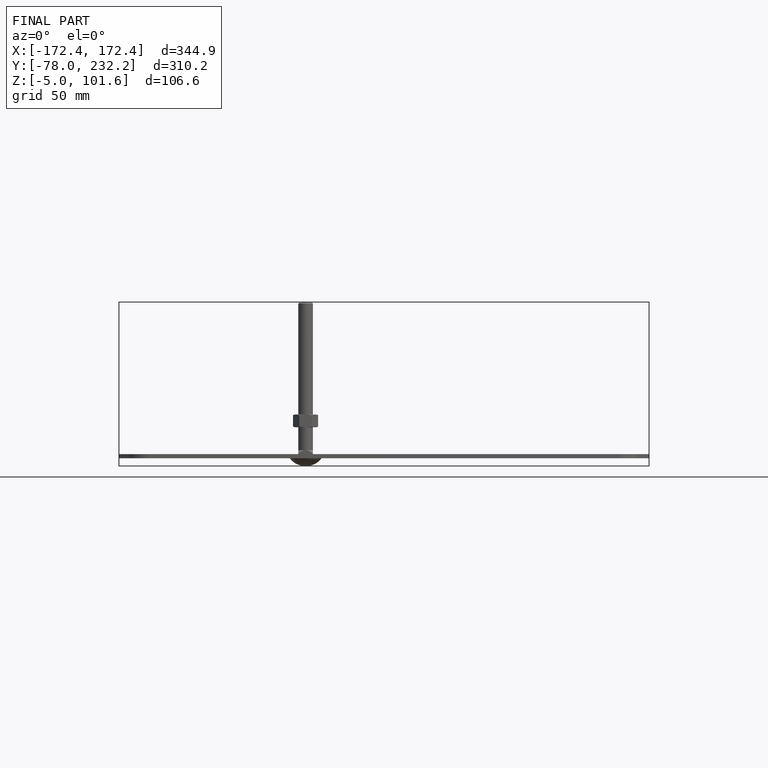
[diagram: finished part — front view with bounding-box wireframe]
